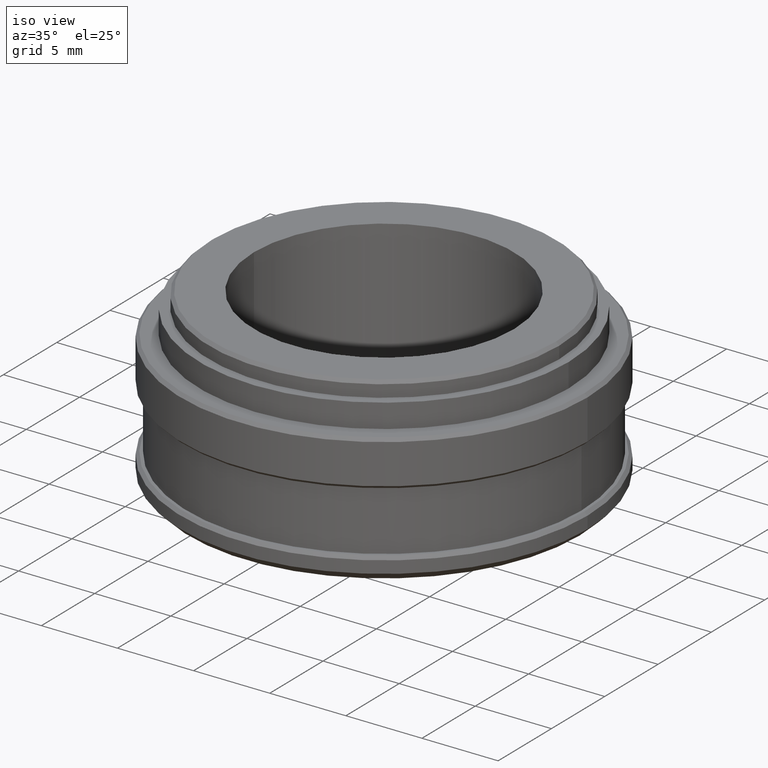
[diagram: clean part render]
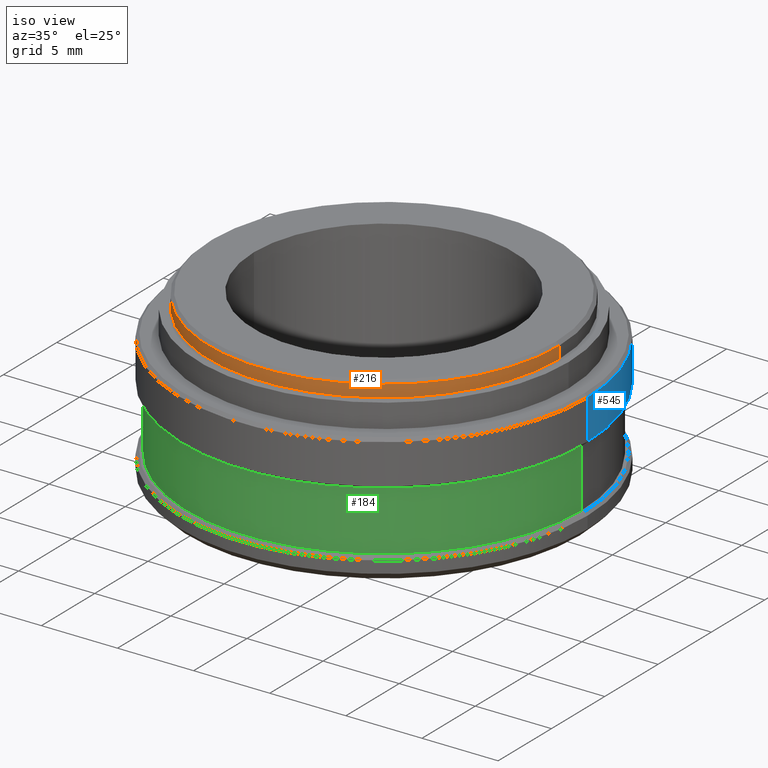
[diagram: same view with three faces highlighted in distinct colors, each labeled with its STEP entity id]
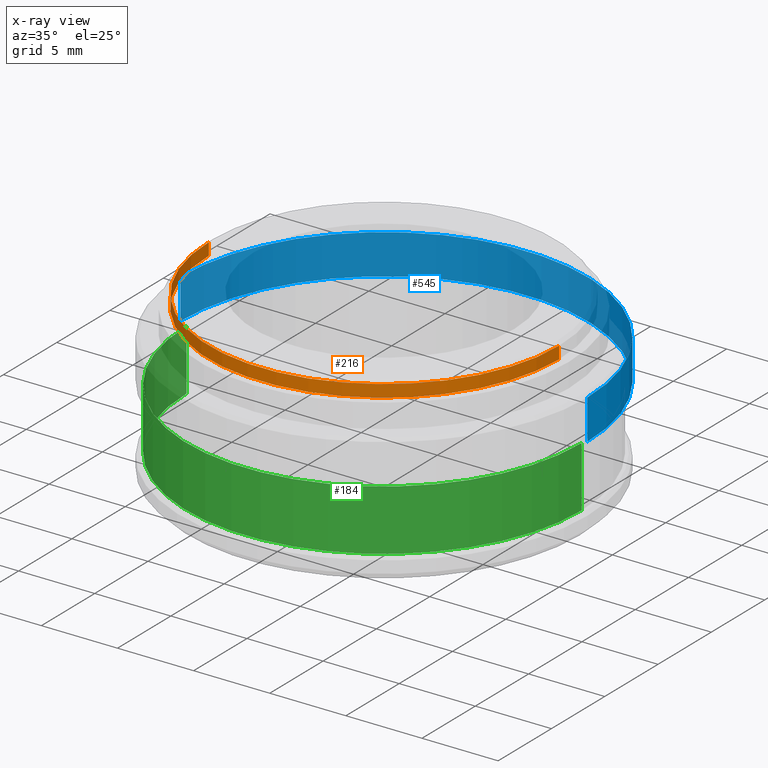
[diagram: x-ray of the same camera — body ghosted, the three highlighted faces saturated]
A machine part, iso view with three faces highlighted in distinct colors.
The next image is the same camera in x-ray (body ghosted, the three faces saturated) — at least one of them is partly hidden behind the body in this view.
Their STEP definitions:

[orange] entity #216 — the highlighted cylindrical surface (partial cylindrical patch) has radius 11.5 mm, axis along (-0, -0, -1).
#24 = CIRCLE ( 'NONE', #462, 11.50000000000000000 ) ;
#60 = CYLINDRICAL_SURFACE ( 'NONE', #360, 11.50000000000000000 ) ;
#104 = VERTEX_POINT ( 'NONE', #411 ) ;
#110 = EDGE_LOOP ( 'NONE', ( #196, #466, #164, #242 ) ) ;
#119 = FACE_OUTER_BOUND ( 'NONE', #110, .T. ) ;
#164 = ORIENTED_EDGE ( 'NONE', *, *, #286, .T. ) ;
#196 = ORIENTED_EDGE ( 'NONE', *, *, #266, .F. ) ;
#216 = ADVANCED_FACE ( 'NONE', ( #119 ), #60, .T. ) ;
#242 = ORIENTED_EDGE ( 'NONE', *, *, #253, .T. ) ;
#253 = EDGE_CURVE ( 'NONE', #407, #781, #24, .T. ) ;
#266 = EDGE_CURVE ( 'NONE', #104, #781, #798, .T. ) ;
#279 = EDGE_CURVE ( 'NONE', #104, #435, #349, .T. ) ;
#286 = EDGE_CURVE ( 'NONE', #435, #407, #731, .T. ) ;
#322 = CARTESIAN_POINT ( 'NONE',  ( 0.0000000000000000000, 0.0000000000000000000, 11.08400000000000000 ) ) ;
#341 = DIRECTION ( 'NONE',  ( -1.000000000000000000, 0.0000000000000000000, 0.0000000000000000000 ) ) ;
#343 = DIRECTION ( 'NONE',  ( -0.0000000000000000000, -0.0000000000000000000, -1.000000000000000000 ) ) ;
#349 = CIRCLE ( 'NONE', #486, 11.50000000000000000 ) ;
#353 = VECTOR ( 'NONE', #689, 1000.000000000000000 ) ;
#360 = AXIS2_PLACEMENT_3D ( 'NONE', #322, #343, #341 ) ;
#391 = CARTESIAN_POINT ( 'NONE',  ( 11.50000000000000000, 1.408343819019456200E-015, 10.08400000000000000 ) ) ;
#407 = VERTEX_POINT ( 'NONE', #408 ) ;
#408 = CARTESIAN_POINT ( 'NONE',  ( -11.50000000000000000, 0.0000000000000000000, 10.08400000000000000 ) ) ;
#411 = CARTESIAN_POINT ( 'NONE',  ( 11.50000000000000000, 1.408343819019456200E-015, 10.88400000000000700 ) ) ;
#435 = VERTEX_POINT ( 'NONE', #788 ) ;
#462 = AXIS2_PLACEMENT_3D ( 'NONE', #580, #609, #773 ) ;
#466 = ORIENTED_EDGE ( 'NONE', *, *, #279, .T. ) ;
#486 = AXIS2_PLACEMENT_3D ( 'NONE', #713, #683, #685 ) ;
#500 = VECTOR ( 'NONE', #639, 1000.000000000000000 ) ;
#580 = CARTESIAN_POINT ( 'NONE',  ( 0.0000000000000000000, 0.0000000000000000000, 10.08400000000000000 ) ) ;
#609 = DIRECTION ( 'NONE',  ( 0.0000000000000000000, 0.0000000000000000000, 1.000000000000000000 ) ) ;
#632 = CARTESIAN_POINT ( 'NONE',  ( 11.50000000000000000, 1.408343819019456200E-015, 11.08400000000000000 ) ) ;
#639 = DIRECTION ( 'NONE',  ( -0.0000000000000000000, -0.0000000000000000000, -1.000000000000000000 ) ) ;
#683 = DIRECTION ( 'NONE',  ( 0.0000000000000000000, 0.0000000000000000000, -1.000000000000000000 ) ) ;
#685 = DIRECTION ( 'NONE',  ( 1.000000000000000000, 0.0000000000000000000, 0.0000000000000000000 ) ) ;
#689 = DIRECTION ( 'NONE',  ( -0.0000000000000000000, -0.0000000000000000000, -1.000000000000000000 ) ) ;
#691 = CARTESIAN_POINT ( 'NONE',  ( -11.50000000000000000, 0.0000000000000000000, 11.08400000000000000 ) ) ;
#713 = CARTESIAN_POINT ( 'NONE',  ( 0.0000000000000000000, 0.0000000000000000000, 10.88400000000000700 ) ) ;
#731 = LINE ( 'NONE', #691, #353 ) ;
#773 = DIRECTION ( 'NONE',  ( 1.000000000000000000, 0.0000000000000000000, 0.0000000000000000000 ) ) ;
#781 = VERTEX_POINT ( 'NONE', #391 ) ;
#788 = CARTESIAN_POINT ( 'NONE',  ( -11.50000000000000000, 0.0000000000000000000, 10.88400000000000700 ) ) ;
#798 = LINE ( 'NONE', #632, #500 ) ;

[blue] entity #545 — the highlighted cylindrical surface (partial cylindrical patch) has radius 13.37 mm, axis along (-0, -0, -1).
#8 = VERTEX_POINT ( 'NONE', #452 ) ;
#108 = VERTEX_POINT ( 'NONE', #283 ) ;
#121 = ORIENTED_EDGE ( 'NONE', *, *, #420, .F. ) ;
#123 = AXIS2_PLACEMENT_3D ( 'NONE', #508, #501, #498 ) ;
#155 = AXIS2_PLACEMENT_3D ( 'NONE', #721, #719, #718 ) ;
#161 = EDGE_LOOP ( 'NONE', ( #669, #664, #724, #121 ) ) ;
#170 = DIRECTION ( 'NONE',  ( -0.0000000000000000000, -0.0000000000000000000, -1.000000000000000000 ) ) ;
#228 = DIRECTION ( 'NONE',  ( -0.0000000000000000000, -0.0000000000000000000, -1.000000000000000000 ) ) ;
#248 = EDGE_CURVE ( 'NONE', #550, #628, #372, .T. ) ;
#283 = CARTESIAN_POINT ( 'NONE',  ( 13.36999999999999900, 1.637352770460010800E-015, 8.320000000000021600 ) ) ;
#285 = CARTESIAN_POINT ( 'NONE',  ( -13.36999999999999900, 0.0000000000000000000, 8.519999999999999600 ) ) ;
#287 = CARTESIAN_POINT ( 'NONE',  ( 0.0000000000000000000, 0.0000000000000000000, 5.700000000000022400 ) ) ;
#319 = CARTESIAN_POINT ( 'NONE',  ( 13.36999999999999900, 1.637352770460010800E-015, 8.519999999999999600 ) ) ;
#356 = VECTOR ( 'NONE', #170, 1000.000000000000000 ) ;
#372 = CIRCLE ( 'NONE', #470, 13.36999999999999900 ) ;
#418 = EDGE_CURVE ( 'NONE', #8, #108, #670, .T. ) ;
#420 = EDGE_CURVE ( 'NONE', #8, #628, #584, .T. ) ;
#447 = EDGE_CURVE ( 'NONE', #108, #550, #673, .T. ) ;
#452 = CARTESIAN_POINT ( 'NONE',  ( -13.36999999999999900, 0.0000000000000000000, 8.320000000000021600 ) ) ;
#470 = AXIS2_PLACEMENT_3D ( 'NONE', #287, #601, #602 ) ;
#479 = FACE_OUTER_BOUND ( 'NONE', #161, .T. ) ;
#498 = DIRECTION ( 'NONE',  ( -1.000000000000000000, 0.0000000000000000000, 0.0000000000000000000 ) ) ;
#501 = DIRECTION ( 'NONE',  ( -0.0000000000000000000, -0.0000000000000000000, -1.000000000000000000 ) ) ;
#508 = CARTESIAN_POINT ( 'NONE',  ( 0.0000000000000000000, 0.0000000000000000000, 8.519999999999999600 ) ) ;
#514 = CARTESIAN_POINT ( 'NONE',  ( 13.36999999999999900, 1.637352770460010800E-015, 5.700000000000022400 ) ) ;
#530 = CARTESIAN_POINT ( 'NONE',  ( -13.36999999999999900, 0.0000000000000000000, 5.700000000000022400 ) ) ;
#545 = ADVANCED_FACE ( 'NONE', ( #479 ), #800, .T. ) ;
#550 = VERTEX_POINT ( 'NONE', #514 ) ;
#584 = LINE ( 'NONE', #285, #786 ) ;
#601 = DIRECTION ( 'NONE',  ( -0.0000000000000000000, -0.0000000000000000000, 1.000000000000000000 ) ) ;
#602 = DIRECTION ( 'NONE',  ( 1.000000000000000000, 0.0000000000000000000, 0.0000000000000000000 ) ) ;
#628 = VERTEX_POINT ( 'NONE', #530 ) ;
#664 = ORIENTED_EDGE ( 'NONE', *, *, #447, .T. ) ;
#669 = ORIENTED_EDGE ( 'NONE', *, *, #418, .T. ) ;
#670 = CIRCLE ( 'NONE', #155, 13.36999999999999900 ) ;
#673 = LINE ( 'NONE', #319, #356 ) ;
#718 = DIRECTION ( 'NONE',  ( 1.000000000000000000, 0.0000000000000000000, 0.0000000000000000000 ) ) ;
#719 = DIRECTION ( 'NONE',  ( 0.0000000000000000000, 0.0000000000000000000, -1.000000000000000000 ) ) ;
#721 = CARTESIAN_POINT ( 'NONE',  ( 0.0000000000000000000, 0.0000000000000000000, 8.320000000000021600 ) ) ;
#724 = ORIENTED_EDGE ( 'NONE', *, *, #248, .T. ) ;
#786 = VECTOR ( 'NONE', #228, 1000.000000000000000 ) ;
#800 = CYLINDRICAL_SURFACE ( 'NONE', #123, 13.36999999999999900 ) ;

[green] entity #184 — the highlighted cylindrical surface (partial cylindrical patch) has radius 12.97 mm, axis along (-0, -0, -1).
#4 = ORIENTED_EDGE ( 'NONE', *, *, #796, .F. ) ;
#5 = FACE_OUTER_BOUND ( 'NONE', #645, .T. ) ;
#13 = VERTEX_POINT ( 'NONE', #32 ) ;
#32 = CARTESIAN_POINT ( 'NONE',  ( 12.97000000000000200, 1.588366898494117400E-015, 5.500000000000000000 ) ) ;
#113 = AXIS2_PLACEMENT_3D ( 'NONE', #400, #402, #403 ) ;
#134 = AXIS2_PLACEMENT_3D ( 'NONE', #448, #434, #397 ) ;
#168 = VERTEX_POINT ( 'NONE', #363 ) ;
#184 = ADVANCED_FACE ( 'NONE', ( #5 ), #769, .T. ) ;
#201 = DIRECTION ( 'NONE',  ( -0.0000000000000000000, -0.0000000000000000000, -1.000000000000000000 ) ) ;
#219 = CIRCLE ( 'NONE', #134, 12.97000000000000200 ) ;
#232 = ORIENTED_EDGE ( 'NONE', *, *, #658, .T. ) ;
#268 = CARTESIAN_POINT ( 'NONE',  ( 0.0000000000000000000, 0.0000000000000000000, 5.500000000000000000 ) ) ;
#277 = DIRECTION ( 'NONE',  ( -0.0000000000000000000, -0.0000000000000000000, -1.000000000000000000 ) ) ;
#281 = EDGE_CURVE ( 'NONE', #555, #168, #657, .T. ) ;
#325 = VERTEX_POINT ( 'NONE', #749 ) ;
#329 = ORIENTED_EDGE ( 'NONE', *, *, #425, .F. ) ;
#331 = VECTOR ( 'NONE', #814, 1000.000000000000000 ) ;
#342 = DIRECTION ( 'NONE',  ( -1.000000000000000000, 0.0000000000000000000, 0.0000000000000000000 ) ) ;
#363 = CARTESIAN_POINT ( 'NONE',  ( -12.97000000000000200, 0.0000000000000000000, 1.500000000000000000 ) ) ;
#397 = DIRECTION ( 'NONE',  ( 1.000000000000000000, 0.0000000000000000000, 0.0000000000000000000 ) ) ;
#400 = CARTESIAN_POINT ( 'NONE',  ( 0.0000000000000000000, 0.0000000000000000000, 5.500000000000000000 ) ) ;
#402 = DIRECTION ( 'NONE',  ( 0.0000000000000000000, 0.0000000000000000000, 1.000000000000000000 ) ) ;
#403 = DIRECTION ( 'NONE',  ( 1.000000000000000000, 0.0000000000000000000, 0.0000000000000000000 ) ) ;
#425 = EDGE_CURVE ( 'NONE', #13, #325, #754, .T. ) ;
#429 = CIRCLE ( 'NONE', #113, 12.97000000000000200 ) ;
#434 = DIRECTION ( 'NONE',  ( 0.0000000000000000000, 0.0000000000000000000, 1.000000000000000000 ) ) ;
#448 = CARTESIAN_POINT ( 'NONE',  ( 0.0000000000000000000, 0.0000000000000000000, 1.500000000000000000 ) ) ;
#509 = CARTESIAN_POINT ( 'NONE',  ( -12.97000000000000200, 0.0000000000000000000, 5.500000000000000000 ) ) ;
#555 = VERTEX_POINT ( 'NONE', #509 ) ;
#645 = EDGE_LOOP ( 'NONE', ( #329, #4, #728, #232 ) ) ;
#650 = VECTOR ( 'NONE', #201, 1000.000000000000000 ) ;
#657 = LINE ( 'NONE', #660, #331 ) ;
#658 = EDGE_CURVE ( 'NONE', #168, #325, #219, .T. ) ;
#660 = CARTESIAN_POINT ( 'NONE',  ( -12.97000000000000200, 0.0000000000000000000, 5.500000000000000000 ) ) ;
#728 = ORIENTED_EDGE ( 'NONE', *, *, #281, .T. ) ;
#737 = CARTESIAN_POINT ( 'NONE',  ( 12.97000000000000200, 1.588366898494117400E-015, 5.500000000000000000 ) ) ;
#749 = CARTESIAN_POINT ( 'NONE',  ( 12.97000000000000200, 1.588366898494117400E-015, 1.500000000000000000 ) ) ;
#754 = LINE ( 'NONE', #737, #650 ) ;
#769 = CYLINDRICAL_SURFACE ( 'NONE', #818, 12.97000000000000200 ) ;
#796 = EDGE_CURVE ( 'NONE', #555, #13, #429, .T. ) ;
#814 = DIRECTION ( 'NONE',  ( -0.0000000000000000000, -0.0000000000000000000, -1.000000000000000000 ) ) ;
#818 = AXIS2_PLACEMENT_3D ( 'NONE', #268, #277, #342 ) ;